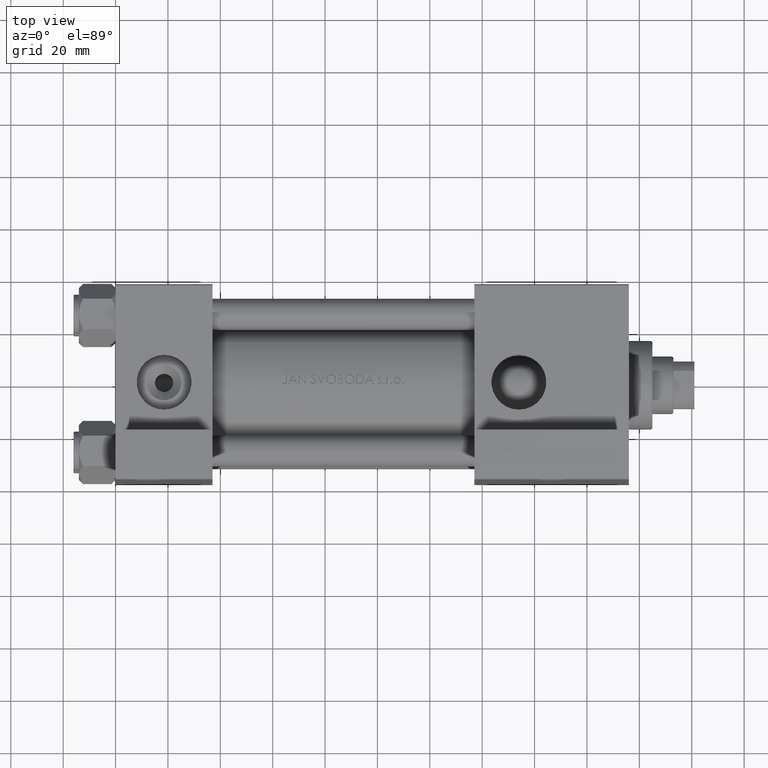
[diagram: clean part render]
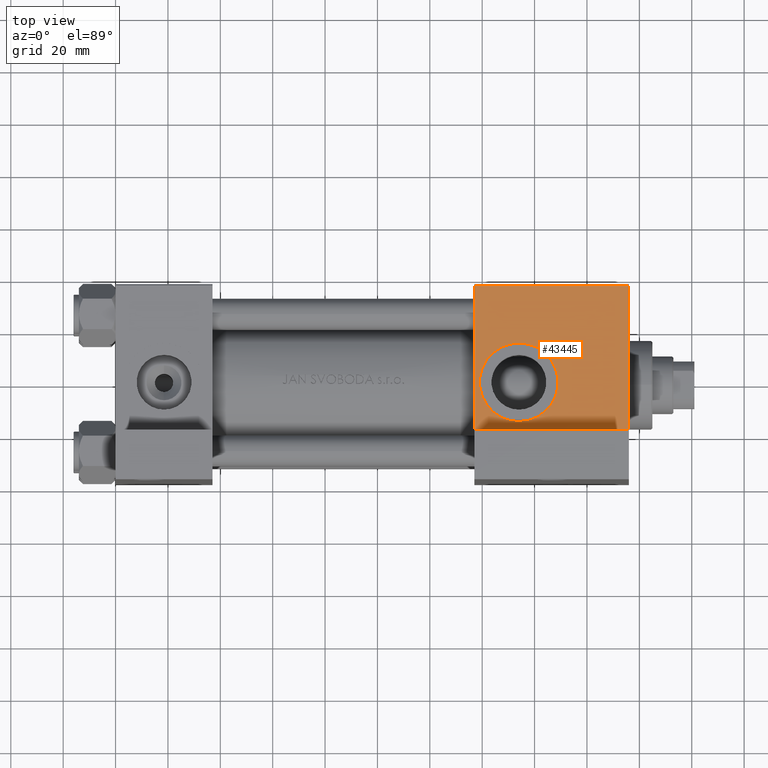
[diagram: same view with one face highlighted and labeled with its STEP entity id]
A machine part, top view. The second image highlights one B-rep face of the part: STEP entity #43445.
In plain terms, the highlighted planar face has unit normal (0, -0, -1).
Its self-contained STEP definition (entity closure, byte-faithful):
#177 = VERTEX_POINT ( 'NONE', #8527 ) ;
#949 = ORIENTED_EDGE ( 'NONE', *, *, #16313, .T. ) ;
#1323 = ORIENTED_EDGE ( 'NONE', *, *, #29980, .F. ) ;
#3477 = CARTESIAN_POINT ( 'NONE',  ( 154.0000000000000284, -37.50000000000000000, 3.469446951953615767E-15 ) ) ;
#5380 = VERTEX_POINT ( 'NONE', #34514 ) ;
#5876 = EDGE_LOOP ( 'NONE', ( #1323, #13402, #42838, #949 ) ) ;
#6260 = VERTEX_POINT ( 'NONE', #48732 ) ;
#6739 = ORIENTED_EDGE ( 'NONE', *, *, #18152, .F. ) ;
#7230 = DIRECTION ( 'NONE',  ( 0.000000000000000000, -1.000000000000000000, -8.673617379884036705E-17 ) ) ;
#8002 = CARTESIAN_POINT ( 'NONE',  ( 137.0000000000000000, -37.50000000000000000, -18.50000000000000000 ) ) ;
#8527 = CARTESIAN_POINT ( 'NONE',  ( 154.0000000000000284, -37.50000000000000000, -15.00000000000002132 ) ) ;
#8810 = DIRECTION ( 'NONE',  ( 0.000000000000000000, -9.251858538542972814E-17, -1.000000000000000000 ) ) ;
#9471 = CIRCLE ( 'NONE', #21378, 15.00000000000002487 ) ;
#11133 = CARTESIAN_POINT ( 'NONE',  ( 196.0000000000000000, -37.50000000000000000, 37.49999999999997868 ) ) ;
#11761 = CIRCLE ( 'NONE', #14921, 15.00000000000002487 ) ;
#13064 = ORIENTED_EDGE ( 'NONE', *, *, #20718, .F. ) ;
#13402 = ORIENTED_EDGE ( 'NONE', *, *, #21824, .T. ) ;
#13440 = EDGE_LOOP ( 'NONE', ( #6739, #13064 ) ) ;
#13651 = LINE ( 'NONE', #48024, #24613 ) ;
#13901 = DIRECTION ( 'NONE',  ( -1.000000000000000000, 0.000000000000000000, 0.000000000000000000 ) ) ;
#14830 = DIRECTION ( 'NONE',  ( 0.000000000000000000, -1.000000000000000000, -8.673617379884036705E-17 ) ) ;
#14921 = AXIS2_PLACEMENT_3D ( 'NONE', #33761, #14830, #46193 ) ;
#16313 = EDGE_CURVE ( 'NONE', #39355, #16766, #27181, .T. ) ;
#16462 = VECTOR ( 'NONE', #46332, 1000.000000000000000 ) ;
#16766 = VERTEX_POINT ( 'NONE', #38665 ) ;
#18152 = EDGE_CURVE ( 'NONE', #177, #27325, #11761, .T. ) ;
#19110 = LINE ( 'NONE', #29355, #47117 ) ;
#20302 = VECTOR ( 'NONE', #8810, 1000.000000000000000 ) ;
#20718 = EDGE_CURVE ( 'NONE', #27325, #177, #9471, .T. ) ;
#21378 = AXIS2_PLACEMENT_3D ( 'NONE', #3477, #7230, #45818 ) ;
#21824 = EDGE_CURVE ( 'NONE', #6260, #5380, #13651, .T. ) ;
#21841 = DIRECTION ( 'NONE',  ( 0.000000000000000000, 9.251858538542972814E-17, 1.000000000000000000 ) ) ;
#24613 = VECTOR ( 'NONE', #13901, 1000.000000000000000 ) ;
#26096 = FACE_OUTER_BOUND ( 'NONE', #5876, .T. ) ;
#27181 = LINE ( 'NONE', #8002, #16462 ) ;
#27325 = VERTEX_POINT ( 'NONE', #45113 ) ;
#27503 = LINE ( 'NONE', #34714, #20302 ) ;
#29355 = CARTESIAN_POINT ( 'NONE',  ( 196.0000000000000000, -37.50000000000000000, 37.49999999999997868 ) ) ;
#29980 = EDGE_CURVE ( 'NONE', #6260, #16766, #19110, .T. ) ;
#33761 = CARTESIAN_POINT ( 'NONE',  ( 154.0000000000000284, -37.50000000000000000, 3.469446951953615767E-15 ) ) ;
#34026 = AXIS2_PLACEMENT_3D ( 'NONE', #11133, #48487, #21841 ) ;
#34514 = CARTESIAN_POINT ( 'NONE',  ( 137.0000000000000000, -37.50000000000000000, 36.99999999999995026 ) ) ;
#34714 = CARTESIAN_POINT ( 'NONE',  ( 137.0000000000000000, -37.50000000000000000, 37.49999999999997868 ) ) ;
#38665 = CARTESIAN_POINT ( 'NONE',  ( 196.0000000000000000, -37.50000000000000711, -18.50000000000000355 ) ) ;
#39355 = VERTEX_POINT ( 'NONE', #42564 ) ;
#42564 = CARTESIAN_POINT ( 'NONE',  ( 137.0000000000000000, -37.50000000000000000, -18.50000000000000000 ) ) ;
#42838 = ORIENTED_EDGE ( 'NONE', *, *, #48328, .T. ) ;
#43445 = ADVANCED_FACE ( 'NONE', ( #48983, #26096 ), #44996, .F. ) ;
#44535 = DIRECTION ( 'NONE',  ( 0.000000000000000000, -9.251858538542972814E-17, -1.000000000000000000 ) ) ;
#44996 = PLANE ( 'NONE',  #34026 ) ;
#45113 = CARTESIAN_POINT ( 'NONE',  ( 154.0000000000000284, -37.50000000000000000, 15.00000000000002842 ) ) ;
#45818 = DIRECTION ( 'NONE',  ( 0.000000000000000000, 0.000000000000000000, -1.000000000000000000 ) ) ;
#46193 = DIRECTION ( 'NONE',  ( 0.000000000000000000, 0.000000000000000000, -1.000000000000000000 ) ) ;
#46332 = DIRECTION ( 'NONE',  ( 1.000000000000000000, -1.176083712526648949E-16, 0.000000000000000000 ) ) ;
#47117 = VECTOR ( 'NONE', #44535, 1000.000000000000000 ) ;
#48024 = CARTESIAN_POINT ( 'NONE',  ( 196.0000000000000000, -37.50000000000000000, 36.99999999999995026 ) ) ;
#48328 = EDGE_CURVE ( 'NONE', #5380, #39355, #27503, .T. ) ;
#48487 = DIRECTION ( 'NONE',  ( 0.000000000000000000, 1.000000000000000000, -9.251858538542972814E-17 ) ) ;
#48732 = CARTESIAN_POINT ( 'NONE',  ( 196.0000000000000000, -37.50000000000000000, 36.99999999999995026 ) ) ;
#48983 = FACE_BOUND ( 'NONE', #13440, .T. ) ;